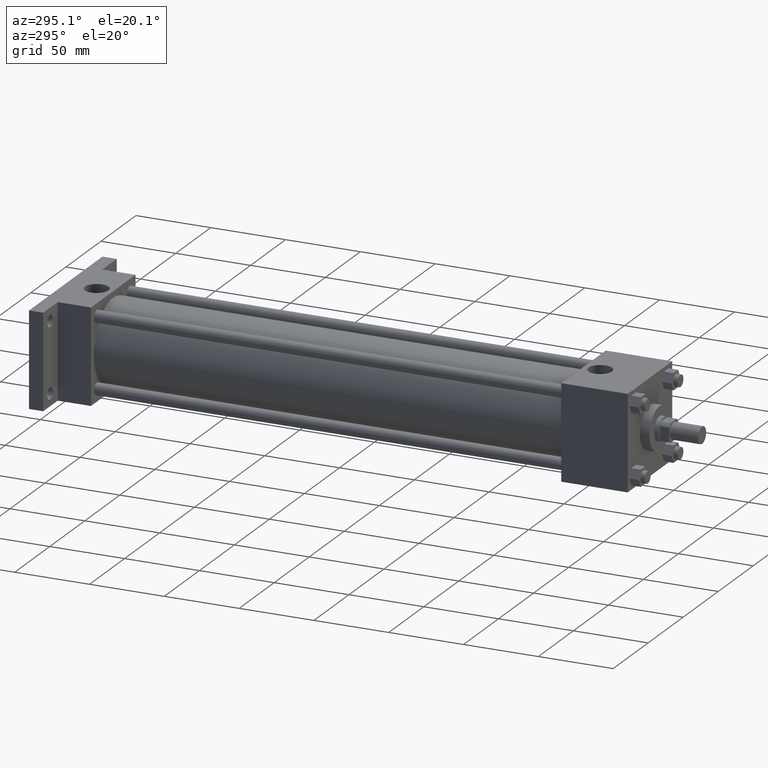
[diagram: clean part render]
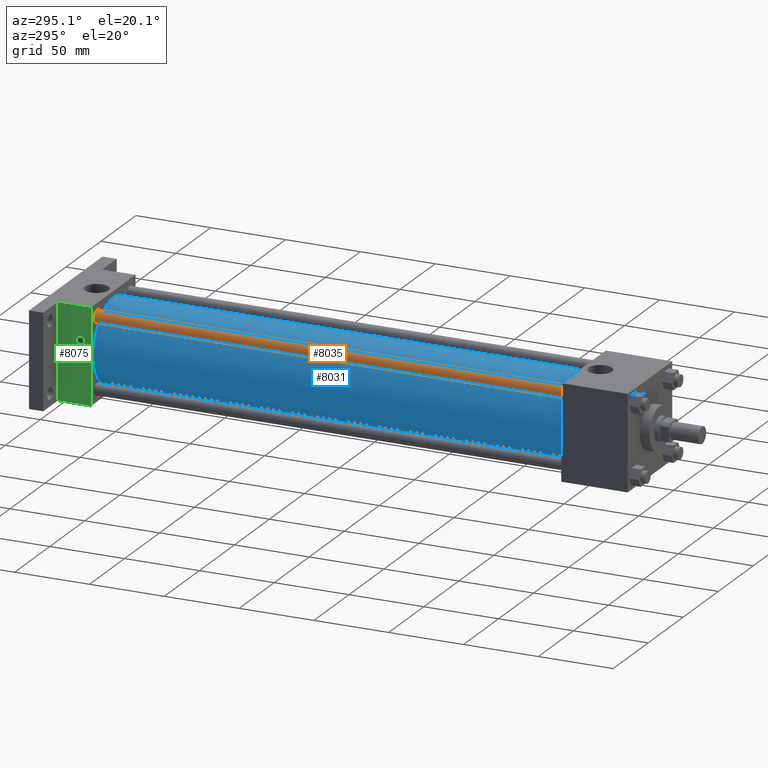
[diagram: same view with three faces highlighted in distinct colors, each labeled with its STEP entity id]
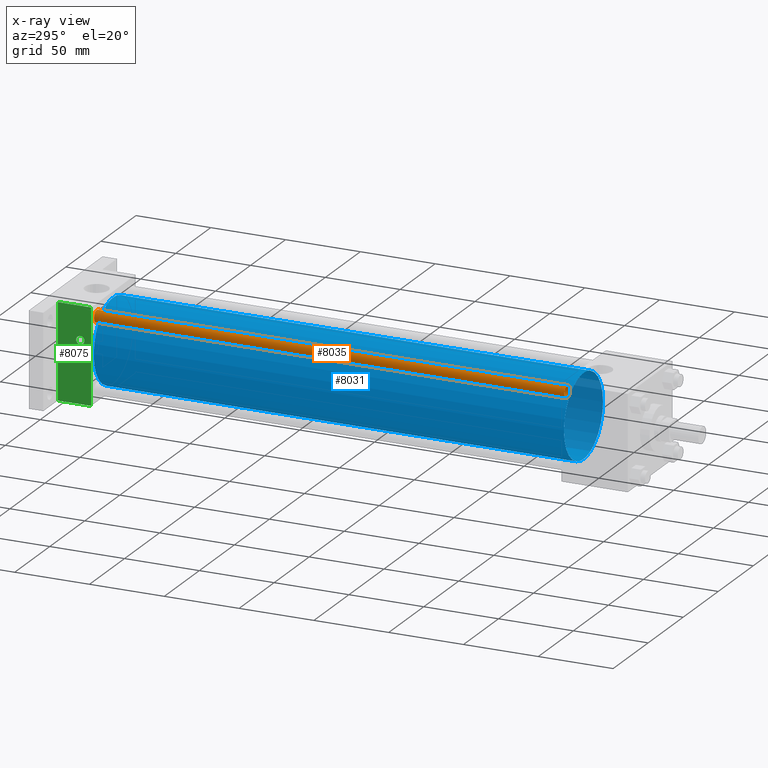
[diagram: x-ray of the same camera — body ghosted, the three highlighted faces saturated]
A machine part, auxiliary view with three faces highlighted in distinct colors.
The next image is the same camera in x-ray (body ghosted, the three faces saturated) — at least one of them is partly hidden behind the body in this view.
Their STEP definitions:

[orange] entity #8035 — the highlighted cylindrical surface (bore or boss wall) has radius 3.9688 mm, axis along (0, -1, 0).
#509=EDGE_CURVE('',#515,#515,#510,.T.);
#510=CIRCLE('',#511,3.968750000E+000);
#511=AXIS2_PLACEMENT_3D('',#512,#513,#514);
#512=CARTESIAN_POINT('',(-2.336800000E+001,6.032500000E+001,2.336800000E+001));
#513=DIRECTION('',(0.0E+000,1.0E+000,0.0E+000));
#514=DIRECTION('',(1.0E+000,0.0E+000,0.0E+000));
#515=VERTEX_POINT('',#516);
#516=CARTESIAN_POINT('',(-1.939925000E+001,6.032500000E+001,2.336800000E+001));
#2397=FACE_OUTER_BOUND('',#2399,.T.);
#2398=FACE_BOUND('',#2400,.T.);
#2399=EDGE_LOOP('',(#2401));
#2400=EDGE_LOOP('',(#2402));
#2401=ORIENTED_EDGE('',*,*,#2456,.F.);
#2402=ORIENTED_EDGE('',*,*,#509,.T.);
#2403=CYLINDRICAL_SURFACE('',#2404,3.968750000E+000);
#2404=AXIS2_PLACEMENT_3D('',#2405,#2406,#2407);
#2405=CARTESIAN_POINT('',(-2.336800000E+001,3.746500000E+002,2.336800000E+001));
#2406=DIRECTION('',(0.0E+000,-1.0E+000,0.0E+000));
#2407=DIRECTION('',(0.0E+000,0.0E+000,-1.0E+000));
#2456=EDGE_CURVE('',#2462,#2462,#2457,.T.);
#2457=CIRCLE('',#2458,3.968750000E+000);
#2458=AXIS2_PLACEMENT_3D('',#2459,#2460,#2461);
#2459=CARTESIAN_POINT('',(-2.336800000E+001,3.746500000E+002,2.336800000E+001));
#2460=DIRECTION('',(0.0E+000,1.0E+000,0.0E+000));
#2461=DIRECTION('',(1.0E+000,0.0E+000,0.0E+000));
#2462=VERTEX_POINT('',#2463);
#2463=CARTESIAN_POINT('',(-1.939925000E+001,3.746500000E+002,2.336800000E+001));
#8035=ADVANCED_FACE('',(#2397,#2398),#2403,.T.);

[blue] entity #8031 — the highlighted cylindrical surface (bore or boss wall) has radius 27.813 mm, axis along (0, -1, 0).
#468=EDGE_CURVE('',#474,#474,#469,.T.);
#469=CIRCLE('',#470,2.781300000E+001);
#470=AXIS2_PLACEMENT_3D('',#471,#472,#473);
#471=CARTESIAN_POINT('',(0.000000000E+000,6.032500000E+001,0.000000000E+000));
#472=DIRECTION('',(0.0E+000,1.0E+000,0.0E+000));
#473=DIRECTION('',(1.0E+000,0.0E+000,0.0E+000));
#474=VERTEX_POINT('',#475);
#475=CARTESIAN_POINT('',(2.781300000E+001,6.032500000E+001,0.000000000E+000));
#2329=FACE_OUTER_BOUND('',#2331,.T.);
#2330=FACE_BOUND('',#2332,.T.);
#2331=EDGE_LOOP('',(#2333));
#2332=EDGE_LOOP('',(#2342));
#2333=ORIENTED_EDGE('',*,*,#2334,.F.);
#2334=EDGE_CURVE('',#2340,#2340,#2335,.T.);
#2335=CIRCLE('',#2336,2.781300000E+001);
#2336=AXIS2_PLACEMENT_3D('',#2337,#2338,#2339);
#2337=CARTESIAN_POINT('',(0.000000000E+000,3.746500000E+002,0.000000000E+000));
#2338=DIRECTION('',(0.0E+000,1.0E+000,0.0E+000));
#2339=DIRECTION('',(1.0E+000,0.0E+000,0.0E+000));
#2340=VERTEX_POINT('',#2341);
#2341=CARTESIAN_POINT('',(2.781300000E+001,3.746500000E+002,0.000000000E+000));
#2342=ORIENTED_EDGE('',*,*,#468,.T.);
#2343=CYLINDRICAL_SURFACE('',#2344,2.781300000E+001);
#2344=AXIS2_PLACEMENT_3D('',#2345,#2346,#2347);
#2345=CARTESIAN_POINT('',(0.000000000E+000,3.746500000E+002,0.000000000E+000));
#2346=DIRECTION('',(0.0E+000,-1.0E+000,0.0E+000));
#2347=DIRECTION('',(0.0E+000,0.0E+000,-1.0E+000));
#8031=ADVANCED_FACE('',(#2329,#2330),#2343,.T.);

[green] entity #8075 — the highlighted planar face has unit normal (-1, 0, 0).
#3430=VERTEX_POINT('',#3432);
#3432=CARTESIAN_POINT('',(-3.175000000E+001,3.746500000E+002,-3.175000000E+001));
#3446=VERTEX_POINT('',#3447);
#3447=CARTESIAN_POINT('',(-3.175000000E+001,3.746500000E+002,3.175000000E+001));
#3448=EDGE_CURVE('',#3446,#3430,#3449,.T.);
#3449=LINE('',#3450,#3451);
#3450=CARTESIAN_POINT('',(-3.175000000E+001,3.746500000E+002,3.175000000E+001));
#3451=VECTOR('',#3452,1.0E+000);
#3452=DIRECTION('',(0.0E+000,0.0E+000,-1.0E+000));
#3498=EDGE_CURVE('',#3503,#3430,#3499,.T.);
#3499=LINE('',#3500,#3501);
#3500=CARTESIAN_POINT('',(-3.175000000E+001,3.968750000E+002,-3.175000000E+001));
#3501=VECTOR('',#3502,1.0E+000);
#3502=DIRECTION('',(0.0E+000,-1.0E+000,0.0E+000));
#3503=VERTEX_POINT('',#3504);
#3504=CARTESIAN_POINT('',(-3.175000000E+001,3.968750000E+002,-3.175000000E+001));
#3603=VERTEX_POINT('',#3604);
#3604=CARTESIAN_POINT('',(-3.175000000E+001,3.968750000E+002,3.175000000E+001));
#3605=EDGE_CURVE('',#3603,#3446,#3606,.T.);
#3606=LINE('',#3607,#3608);
#3607=CARTESIAN_POINT('',(-3.175000000E+001,3.968750000E+002,3.175000000E+001));
#3608=VECTOR('',#3609,1.0E+000);
#3609=DIRECTION('',(0.0E+000,-1.0E+000,0.0E+000));
#3624=FACE_OUTER_BOUND('',#3626,.T.);
#3625=FACE_BOUND('',#3627,.T.);
#3626=EDGE_LOOP('',(#3628,#3629,#3630,#3631));
#3627=EDGE_LOOP('',(#3637));
#3628=ORIENTED_EDGE('',*,*,#3448,.F.);
#3629=ORIENTED_EDGE('',*,*,#3605,.F.);
#3630=ORIENTED_EDGE('',*,*,#3632,.T.);
#3631=ORIENTED_EDGE('',*,*,#3498,.T.);
#3632=EDGE_CURVE('',#3603,#3503,#3633,.T.);
#3633=LINE('',#3634,#3635);
#3634=CARTESIAN_POINT('',(-3.175000000E+001,3.968750000E+002,3.175000000E+001));
#3635=VECTOR('',#3636,1.0E+000);
#3636=DIRECTION('',(0.0E+000,0.0E+000,-1.0E+000));
#3637=ORIENTED_EDGE('',*,*,#3638,.T.);
#3638=EDGE_CURVE('',#3644,#3644,#3639,.T.);
#3639=CIRCLE('',#3640,2.778125000E+000);
#3640=AXIS2_PLACEMENT_3D('',#3641,#3642,#3643);
#3641=CARTESIAN_POINT('',(-3.175000000E+001,3.817874000E+002,9.525000000E+000));
#3642=DIRECTION('',(1.0E+000,0.0E+000,0.0E+000));
#3643=DIRECTION('',(0.0E+000,-1.0E+000,0.0E+000));
#3644=VERTEX_POINT('',#3645);
#3645=CARTESIAN_POINT('',(-3.175000000E+001,3.790092750E+002,9.525000000E+000));
#3646=PLANE('',#3647);
#3647=AXIS2_PLACEMENT_3D('',#3648,#3649,#3650);
#3648=CARTESIAN_POINT('',(-3.175000000E+001,3.968750000E+002,3.175000000E+001));
#3649=DIRECTION('',(-1.0E+000,0.0E+000,0.0E+000));
#3650=DIRECTION('',(0.0E+000,0.0E+000,1.0E+000));
#8075=ADVANCED_FACE('',(#3624,#3625),#3646,.T.);